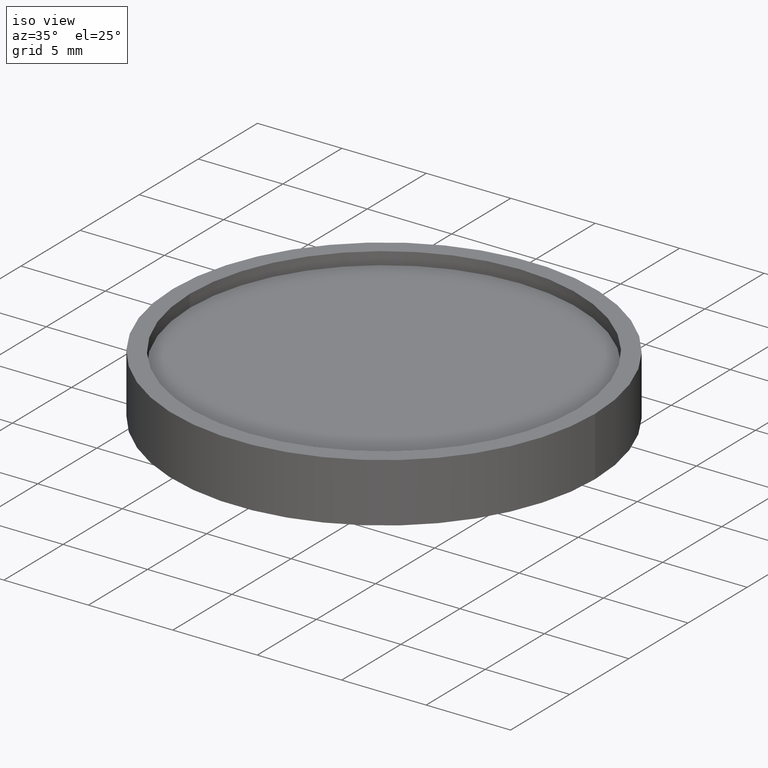
[diagram: clean part render]
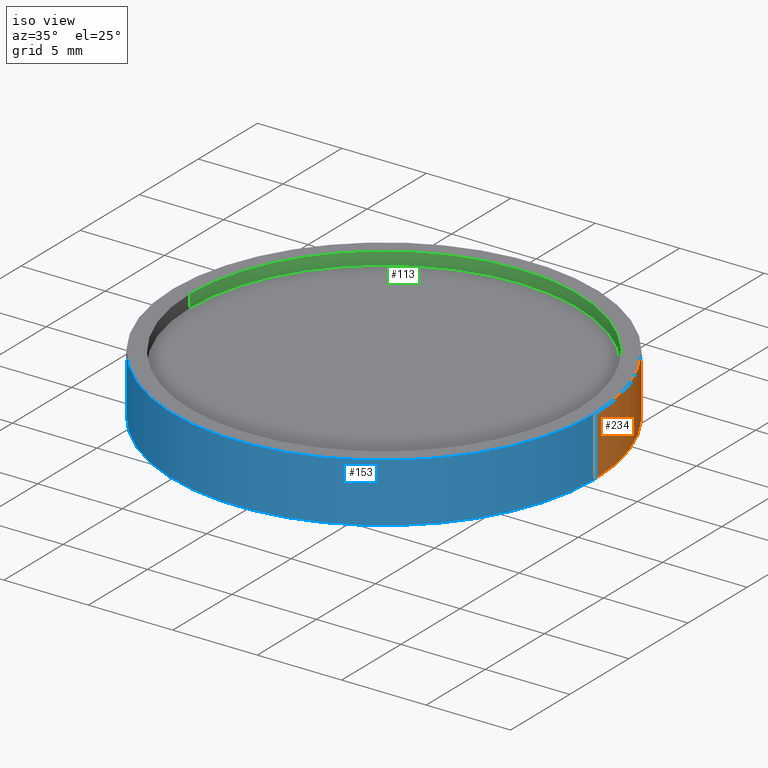
[diagram: same view with three faces highlighted in distinct colors, each labeled with its STEP entity id]
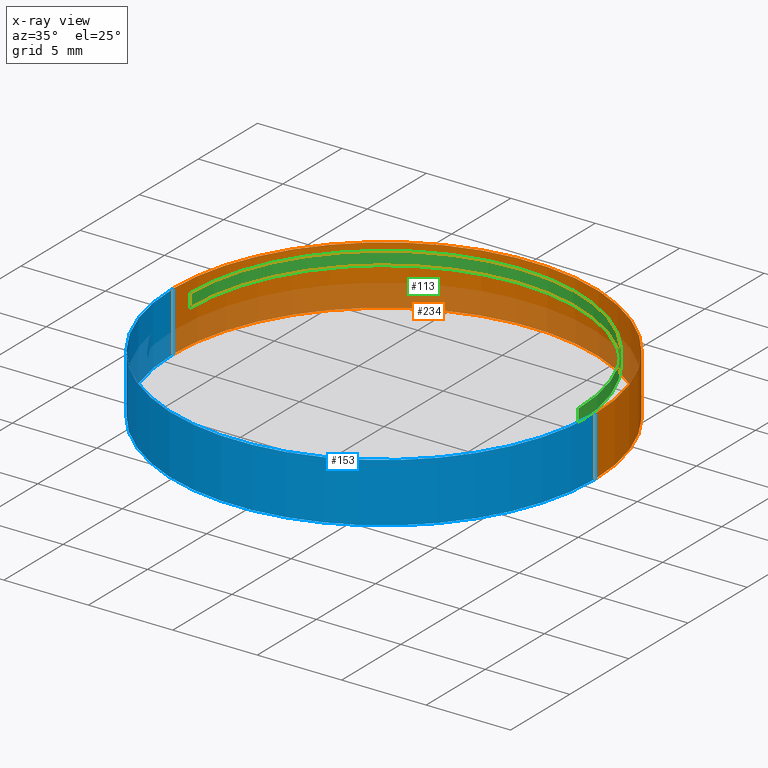
[diagram: x-ray of the same camera — body ghosted, the three highlighted faces saturated]
A machine part, iso view with three faces highlighted in distinct colors.
The next image is the same camera in x-ray (body ghosted, the three faces saturated) — at least one of them is partly hidden behind the body in this view.
Their STEP definitions:

[orange] entity #234 — the highlighted cylindrical surface (partial cylindrical patch) has radius 12.5 mm, axis along (-0, -0, -1).
#4 = FACE_OUTER_BOUND ( 'NONE', #61, .T. ) ;
#18 = VECTOR ( 'NONE', #151, 1000.000000000000000 ) ;
#20 = LINE ( 'NONE', #152, #301 ) ;
#27 = VERTEX_POINT ( 'NONE', #208 ) ;
#29 = CIRCLE ( 'NONE', #284, 12.50000000000000000 ) ;
#61 = EDGE_LOOP ( 'NONE', ( #357, #252, #417, #379 ) ) ;
#76 = EDGE_CURVE ( 'NONE', #287, #226, #20, .T. ) ;
#106 = AXIS2_PLACEMENT_3D ( 'NONE', #183, #224, #193 ) ;
#139 = DIRECTION ( 'NONE',  ( -0.000000000000000000, -0.000000000000000000, -1.000000000000000000 ) ) ;
#140 = DIRECTION ( 'NONE',  ( -1.000000000000000000, 0.000000000000000000, 0.000000000000000000 ) ) ;
#151 = DIRECTION ( 'NONE',  ( -0.000000000000000000, -0.000000000000000000, -1.000000000000000000 ) ) ;
#152 = CARTESIAN_POINT ( 'NONE',  ( -12.50000000000000000, 0.000000000000000000, 3.500000000000000000 ) ) ;
#168 = CYLINDRICAL_SURFACE ( 'NONE', #271, 12.50000000000000000 ) ;
#183 = CARTESIAN_POINT ( 'NONE',  ( 0.000000000000000000, 0.000000000000000000, 3.500000000000000000 ) ) ;
#193 = DIRECTION ( 'NONE',  ( 1.000000000000000000, 0.000000000000000000, 0.000000000000000000 ) ) ;
#208 = CARTESIAN_POINT ( 'NONE',  ( 12.50000000000000000, 1.530808498934191521E-15, 3.500000000000000000 ) ) ;
#224 = DIRECTION ( 'NONE',  ( 0.000000000000000000, 0.000000000000000000, 1.000000000000000000 ) ) ;
#226 = VERTEX_POINT ( 'NONE', #333 ) ;
#234 = ADVANCED_FACE ( 'NONE', ( #4 ), #168, .T. ) ;
#252 = ORIENTED_EDGE ( 'NONE', *, *, #269, .T. ) ;
#269 = EDGE_CURVE ( 'NONE', #27, #324, #405, .T. ) ;
#271 = AXIS2_PLACEMENT_3D ( 'NONE', #302, #139, #140 ) ;
#283 = DIRECTION ( 'NONE',  ( -0.000000000000000000, -0.000000000000000000, -1.000000000000000000 ) ) ;
#284 = AXIS2_PLACEMENT_3D ( 'NONE', #413, #349, #358 ) ;
#287 = VERTEX_POINT ( 'NONE', #372 ) ;
#288 = CARTESIAN_POINT ( 'NONE',  ( 12.50000000000000000, 1.530808498934191521E-15, 0.000000000000000000 ) ) ;
#294 = CIRCLE ( 'NONE', #106, 12.50000000000000000 ) ;
#301 = VECTOR ( 'NONE', #283, 1000.000000000000000 ) ;
#302 = CARTESIAN_POINT ( 'NONE',  ( 0.000000000000000000, 0.000000000000000000, 3.500000000000000000 ) ) ;
#324 = VERTEX_POINT ( 'NONE', #288 ) ;
#333 = CARTESIAN_POINT ( 'NONE',  ( -12.50000000000000000, 0.000000000000000000, 0.000000000000000000 ) ) ;
#349 = DIRECTION ( 'NONE',  ( 0.000000000000000000, 0.000000000000000000, 1.000000000000000000 ) ) ;
#357 = ORIENTED_EDGE ( 'NONE', *, *, #394, .F. ) ;
#358 = DIRECTION ( 'NONE',  ( 1.000000000000000000, 0.000000000000000000, 0.000000000000000000 ) ) ;
#365 = EDGE_CURVE ( 'NONE', #324, #226, #29, .T. ) ;
#372 = CARTESIAN_POINT ( 'NONE',  ( -12.50000000000000000, 0.000000000000000000, 3.500000000000000000 ) ) ;
#379 = ORIENTED_EDGE ( 'NONE', *, *, #76, .F. ) ;
#394 = EDGE_CURVE ( 'NONE', #27, #287, #294, .T. ) ;
#399 = CARTESIAN_POINT ( 'NONE',  ( 12.50000000000000000, 1.530808498934191521E-15, 3.500000000000000000 ) ) ;
#405 = LINE ( 'NONE', #399, #18 ) ;
#413 = CARTESIAN_POINT ( 'NONE',  ( 0.000000000000000000, 0.000000000000000000, 0.000000000000000000 ) ) ;
#417 = ORIENTED_EDGE ( 'NONE', *, *, #365, .T. ) ;

[blue] entity #153 — the highlighted cylindrical surface (partial cylindrical patch) has radius 12.5 mm, axis along (-0, -0, -1).
#3 = DIRECTION ( 'NONE',  ( -0.000000000000000000, -0.000000000000000000, -1.000000000000000000 ) ) ;
#18 = VECTOR ( 'NONE', #151, 1000.000000000000000 ) ;
#20 = LINE ( 'NONE', #152, #301 ) ;
#21 = ORIENTED_EDGE ( 'NONE', *, *, #354, .T. ) ;
#27 = VERTEX_POINT ( 'NONE', #208 ) ;
#28 = FACE_OUTER_BOUND ( 'NONE', #220, .T. ) ;
#31 = AXIS2_PLACEMENT_3D ( 'NONE', #392, #3, #196 ) ;
#38 = CIRCLE ( 'NONE', #371, 12.50000000000000000 ) ;
#57 = DIRECTION ( 'NONE',  ( 0.000000000000000000, 0.000000000000000000, 1.000000000000000000 ) ) ;
#64 = ORIENTED_EDGE ( 'NONE', *, *, #76, .T. ) ;
#76 = EDGE_CURVE ( 'NONE', #287, #226, #20, .T. ) ;
#83 = EDGE_CURVE ( 'NONE', #287, #27, #38, .T. ) ;
#151 = DIRECTION ( 'NONE',  ( -0.000000000000000000, -0.000000000000000000, -1.000000000000000000 ) ) ;
#152 = CARTESIAN_POINT ( 'NONE',  ( -12.50000000000000000, 0.000000000000000000, 3.500000000000000000 ) ) ;
#153 = ADVANCED_FACE ( 'NONE', ( #28 ), #414, .T. ) ;
#190 = CARTESIAN_POINT ( 'NONE',  ( 0.000000000000000000, 0.000000000000000000, 0.000000000000000000 ) ) ;
#196 = DIRECTION ( 'NONE',  ( -1.000000000000000000, 0.000000000000000000, 0.000000000000000000 ) ) ;
#208 = CARTESIAN_POINT ( 'NONE',  ( 12.50000000000000000, 1.530808498934191521E-15, 3.500000000000000000 ) ) ;
#216 = ORIENTED_EDGE ( 'NONE', *, *, #83, .F. ) ;
#220 = EDGE_LOOP ( 'NONE', ( #412, #216, #64, #21 ) ) ;
#226 = VERTEX_POINT ( 'NONE', #333 ) ;
#227 = DIRECTION ( 'NONE',  ( 1.000000000000000000, 0.000000000000000000, 0.000000000000000000 ) ) ;
#231 = AXIS2_PLACEMENT_3D ( 'NONE', #190, #57, #227 ) ;
#250 = DIRECTION ( 'NONE',  ( 1.000000000000000000, 0.000000000000000000, 0.000000000000000000 ) ) ;
#269 = EDGE_CURVE ( 'NONE', #27, #324, #405, .T. ) ;
#274 = DIRECTION ( 'NONE',  ( 0.000000000000000000, 0.000000000000000000, 1.000000000000000000 ) ) ;
#283 = DIRECTION ( 'NONE',  ( -0.000000000000000000, -0.000000000000000000, -1.000000000000000000 ) ) ;
#287 = VERTEX_POINT ( 'NONE', #372 ) ;
#288 = CARTESIAN_POINT ( 'NONE',  ( 12.50000000000000000, 1.530808498934191521E-15, 0.000000000000000000 ) ) ;
#301 = VECTOR ( 'NONE', #283, 1000.000000000000000 ) ;
#304 = CIRCLE ( 'NONE', #231, 12.50000000000000000 ) ;
#324 = VERTEX_POINT ( 'NONE', #288 ) ;
#333 = CARTESIAN_POINT ( 'NONE',  ( -12.50000000000000000, 0.000000000000000000, 0.000000000000000000 ) ) ;
#354 = EDGE_CURVE ( 'NONE', #226, #324, #304, .T. ) ;
#371 = AXIS2_PLACEMENT_3D ( 'NONE', #404, #274, #250 ) ;
#372 = CARTESIAN_POINT ( 'NONE',  ( -12.50000000000000000, 0.000000000000000000, 3.500000000000000000 ) ) ;
#392 = CARTESIAN_POINT ( 'NONE',  ( 0.000000000000000000, 0.000000000000000000, 3.500000000000000000 ) ) ;
#399 = CARTESIAN_POINT ( 'NONE',  ( 12.50000000000000000, 1.530808498934191521E-15, 3.500000000000000000 ) ) ;
#404 = CARTESIAN_POINT ( 'NONE',  ( 0.000000000000000000, 0.000000000000000000, 3.500000000000000000 ) ) ;
#405 = LINE ( 'NONE', #399, #18 ) ;
#412 = ORIENTED_EDGE ( 'NONE', *, *, #269, .F. ) ;
#414 = CYLINDRICAL_SURFACE ( 'NONE', #31, 12.50000000000000000 ) ;

[green] entity #113 — the highlighted cylindrical surface (partial cylindrical patch) has radius 11.5 mm, axis along (-0, -0, 1).
#30 = VERTEX_POINT ( 'NONE', #242 ) ;
#32 = CIRCLE ( 'NONE', #241, 11.50000000000000000 ) ;
#75 = CIRCLE ( 'NONE', #314, 11.50000000000000000 ) ;
#84 = FACE_OUTER_BOUND ( 'NONE', #86, .T. ) ;
#86 = EDGE_LOOP ( 'NONE', ( #90, #374, #223, #251 ) ) ;
#90 = ORIENTED_EDGE ( 'NONE', *, *, #178, .F. ) ;
#109 = EDGE_CURVE ( 'NONE', #30, #164, #32, .T. ) ;
#111 = DIRECTION ( 'NONE',  ( 1.000000000000000000, 0.000000000000000000, 0.000000000000000000 ) ) ;
#113 = ADVANCED_FACE ( 'NONE', ( #84 ), #212, .F. ) ;
#116 = CARTESIAN_POINT ( 'NONE',  ( 0.000000000000000000, 0.000000000000000000, 3.500000000000000000 ) ) ;
#125 = CARTESIAN_POINT ( 'NONE',  ( 0.000000000000000000, 0.000000000000000000, 2.750000000000000000 ) ) ;
#138 = CARTESIAN_POINT ( 'NONE',  ( -11.50000000000000000, 1.408343819019456176E-15, 2.750000000000000000 ) ) ;
#149 = CARTESIAN_POINT ( 'NONE',  ( 11.50000000000000000, 0.000000000000000000, 2.750000000000000000 ) ) ;
#164 = VERTEX_POINT ( 'NONE', #261 ) ;
#166 = LINE ( 'NONE', #138, #214 ) ;
#178 = EDGE_CURVE ( 'NONE', #345, #164, #166, .T. ) ;
#212 = CYLINDRICAL_SURFACE ( 'NONE', #277, 11.50000000000000000 ) ;
#214 = VECTOR ( 'NONE', #233, 1000.000000000000000 ) ;
#223 = ORIENTED_EDGE ( 'NONE', *, *, #259, .T. ) ;
#233 = DIRECTION ( 'NONE',  ( -0.000000000000000000, -0.000000000000000000, 1.000000000000000000 ) ) ;
#241 = AXIS2_PLACEMENT_3D ( 'NONE', #116, #380, #373 ) ;
#242 = CARTESIAN_POINT ( 'NONE',  ( 11.50000000000000000, 0.000000000000000000, 3.500000000000000000 ) ) ;
#251 = ORIENTED_EDGE ( 'NONE', *, *, #109, .T. ) ;
#258 = CARTESIAN_POINT ( 'NONE',  ( -11.50000000000000000, 1.408343819019456176E-15, 2.750000000000000000 ) ) ;
#259 = EDGE_CURVE ( 'NONE', #350, #30, #272, .T. ) ;
#261 = CARTESIAN_POINT ( 'NONE',  ( -11.50000000000000000, 1.408343819019456176E-15, 3.500000000000000000 ) ) ;
#272 = LINE ( 'NONE', #149, #367 ) ;
#277 = AXIS2_PLACEMENT_3D ( 'NONE', #125, #317, #390 ) ;
#282 = CARTESIAN_POINT ( 'NONE',  ( 11.50000000000000000, 0.000000000000000000, 2.750000000000000000 ) ) ;
#295 = EDGE_CURVE ( 'NONE', #350, #345, #75, .T. ) ;
#314 = AXIS2_PLACEMENT_3D ( 'NONE', #397, #400, #111 ) ;
#317 = DIRECTION ( 'NONE',  ( -0.000000000000000000, -0.000000000000000000, 1.000000000000000000 ) ) ;
#339 = DIRECTION ( 'NONE',  ( -0.000000000000000000, -0.000000000000000000, 1.000000000000000000 ) ) ;
#345 = VERTEX_POINT ( 'NONE', #258 ) ;
#350 = VERTEX_POINT ( 'NONE', #282 ) ;
#367 = VECTOR ( 'NONE', #339, 1000.000000000000000 ) ;
#373 = DIRECTION ( 'NONE',  ( 1.000000000000000000, 0.000000000000000000, 0.000000000000000000 ) ) ;
#374 = ORIENTED_EDGE ( 'NONE', *, *, #295, .F. ) ;
#380 = DIRECTION ( 'NONE',  ( 0.000000000000000000, 0.000000000000000000, 1.000000000000000000 ) ) ;
#390 = DIRECTION ( 'NONE',  ( 1.000000000000000000, 0.000000000000000000, 0.000000000000000000 ) ) ;
#397 = CARTESIAN_POINT ( 'NONE',  ( 0.000000000000000000, 0.000000000000000000, 2.750000000000000000 ) ) ;
#400 = DIRECTION ( 'NONE',  ( 0.000000000000000000, 0.000000000000000000, 1.000000000000000000 ) ) ;